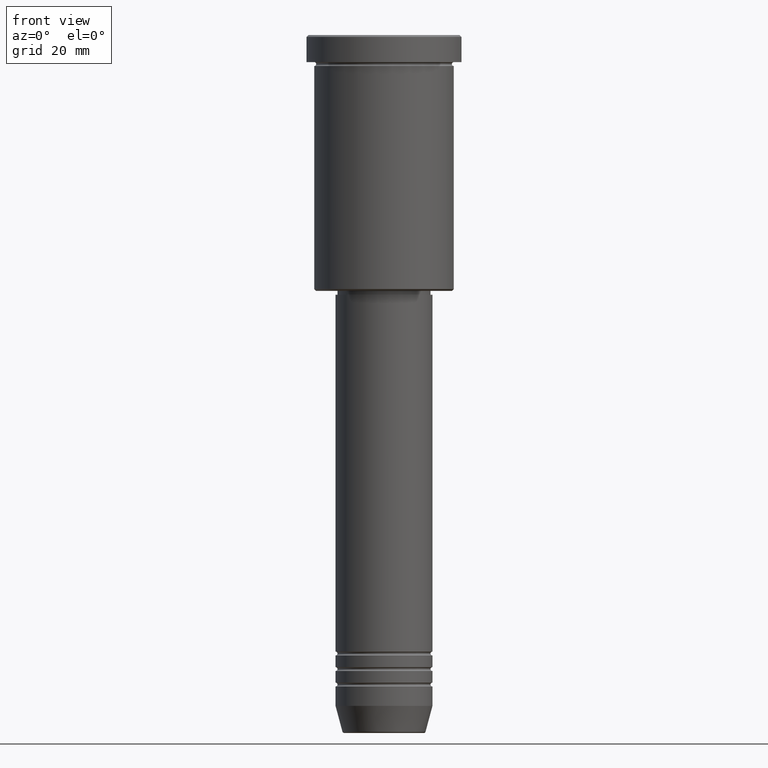
[diagram: clean part render]
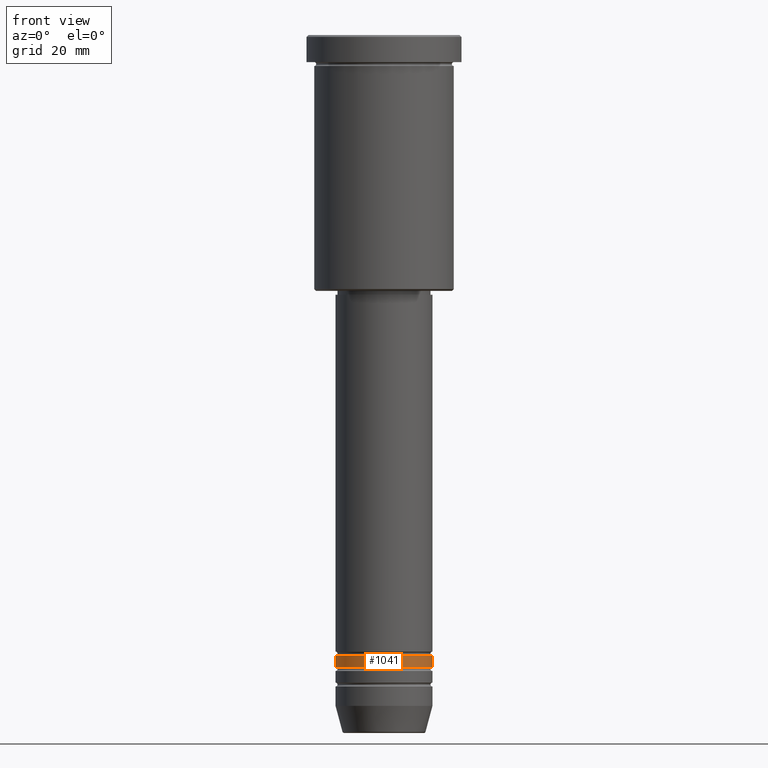
[diagram: same view with one face highlighted and labeled with its STEP entity id]
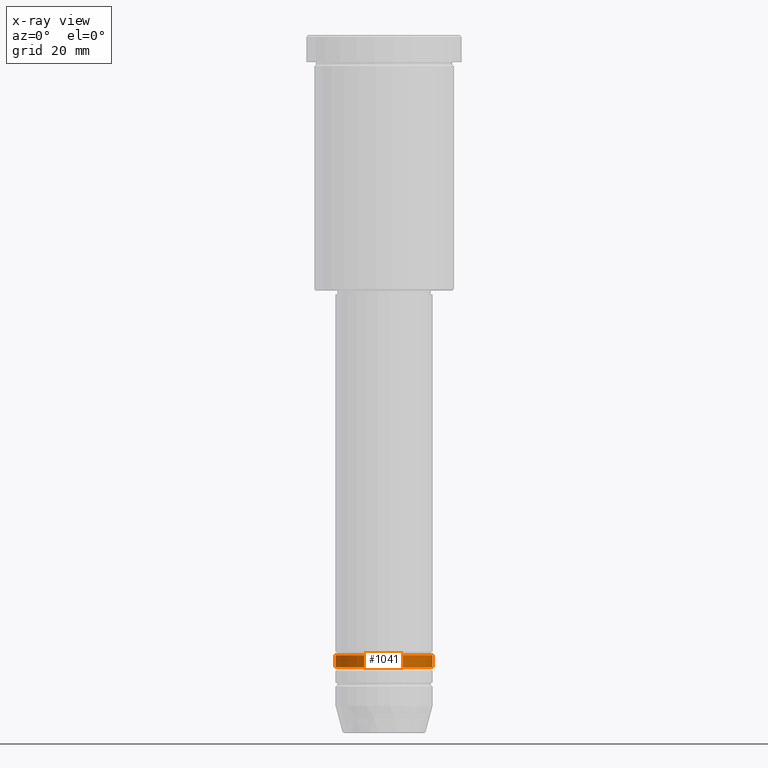
[diagram: x-ray of the same camera — body ghosted, the highlighted face saturated]
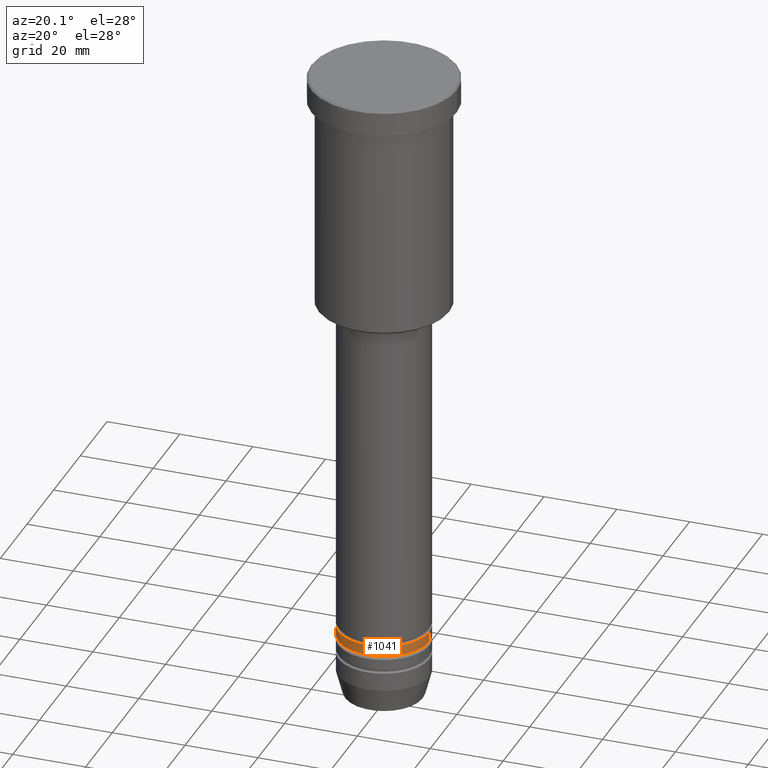
[diagram: same view with one face highlighted and labeled with its STEP entity id]
A machine part, front view. The second image highlights one B-rep face of the part: STEP entity #1041.
The next image is the same camera in x-ray: the body ghosted, the highlighted face saturated — about 0% of this face is hidden behind the body in this view.
A second angle (auxiliary view) of the same face is appended — the face is thin or edge-on in the first view.
In plain terms, the highlighted cylindrical surface (partial cylindrical patch) has radius 12.5 mm, axis along (-0, -0, 1).
Its self-contained STEP definition (entity closure, byte-faithful):
#77 = VECTOR ( 'NONE', #602, 1000.000000000000000 ) ;
#138 = ORIENTED_EDGE ( 'NONE', *, *, #659, .T. ) ;
#149 = CARTESIAN_POINT ( 'NONE',  ( 12.50000000000000178, 0.000000000000000000, 0.000000000000000000 ) ) ;
#180 = VERTEX_POINT ( 'NONE', #869 ) ;
#242 = FACE_OUTER_BOUND ( 'NONE', #1058, .T. ) ;
#251 = CYLINDRICAL_SURFACE ( 'NONE', #422, 12.50000000000000178 ) ;
#253 = DIRECTION ( 'NONE',  ( -0.000000000000000000, -0.000000000000000000, 1.000000000000000000 ) ) ;
#267 = ORIENTED_EDGE ( 'NONE', *, *, #374, .F. ) ;
#329 = CARTESIAN_POINT ( 'NONE',  ( 0.000000000000000000, 0.000000000000000000, 0.000000000000000000 ) ) ;
#374 = EDGE_CURVE ( 'NONE', #487, #605, #554, .T. ) ;
#414 = CARTESIAN_POINT ( 'NONE',  ( 0.000000000000000000, 0.000000000000000000, -163.0000000000000000 ) ) ;
#421 = AXIS2_PLACEMENT_3D ( 'NONE', #414, #498, #872 ) ;
#422 = AXIS2_PLACEMENT_3D ( 'NONE', #329, #611, #686 ) ;
#487 = VERTEX_POINT ( 'NONE', #660 ) ;
#498 = DIRECTION ( 'NONE',  ( -0.000000000000000000, -0.000000000000000000, 1.000000000000000000 ) ) ;
#527 = CARTESIAN_POINT ( 'NONE',  ( 0.000000000000000000, 0.000000000000000000, -160.0000000000000000 ) ) ;
#532 = LINE ( 'NONE', #1071, #705 ) ;
#554 = CIRCLE ( 'NONE', #684, 12.50000000000000000 ) ;
#577 = CIRCLE ( 'NONE', #421, 12.50000000000000355 ) ;
#602 = DIRECTION ( 'NONE',  ( -0.000000000000000000, -0.000000000000000000, 1.000000000000000000 ) ) ;
#603 = CARTESIAN_POINT ( 'NONE',  ( -12.50000000000000533, 1.530808498934192113E-15, -163.0000000000000000 ) ) ;
#605 = VERTEX_POINT ( 'NONE', #848 ) ;
#611 = DIRECTION ( 'NONE',  ( -0.000000000000000000, -0.000000000000000000, 1.000000000000000000 ) ) ;
#659 = EDGE_CURVE ( 'NONE', #662, #180, #577, .T. ) ;
#660 = CARTESIAN_POINT ( 'NONE',  ( -12.50000000000000000, 1.530808498934191719E-15, -160.0000000000000000 ) ) ;
#662 = VERTEX_POINT ( 'NONE', #603 ) ;
#684 = AXIS2_PLACEMENT_3D ( 'NONE', #527, #700, #891 ) ;
#686 = DIRECTION ( 'NONE',  ( 1.000000000000000000, 0.000000000000000000, 0.000000000000000000 ) ) ;
#700 = DIRECTION ( 'NONE',  ( -0.000000000000000000, -0.000000000000000000, 1.000000000000000000 ) ) ;
#705 = VECTOR ( 'NONE', #253, 1000.000000000000000 ) ;
#736 = EDGE_CURVE ( 'NONE', #662, #487, #532, .T. ) ;
#782 = ORIENTED_EDGE ( 'NONE', *, *, #736, .F. ) ;
#848 = CARTESIAN_POINT ( 'NONE',  ( 12.50000000000000000, 0.000000000000000000, -160.0000000000000000 ) ) ;
#869 = CARTESIAN_POINT ( 'NONE',  ( 12.50000000000000355, 0.000000000000000000, -163.0000000000000000 ) ) ;
#872 = DIRECTION ( 'NONE',  ( 1.000000000000000000, 0.000000000000000000, 0.000000000000000000 ) ) ;
#891 = DIRECTION ( 'NONE',  ( 1.000000000000000000, 0.000000000000000000, 0.000000000000000000 ) ) ;
#1014 = EDGE_CURVE ( 'NONE', #180, #605, #1156, .T. ) ;
#1041 = ADVANCED_FACE ( 'NONE', ( #242 ), #251, .T. ) ;
#1058 = EDGE_LOOP ( 'NONE', ( #782, #138, #1070, #267 ) ) ;
#1070 = ORIENTED_EDGE ( 'NONE', *, *, #1014, .T. ) ;
#1071 = CARTESIAN_POINT ( 'NONE',  ( -12.50000000000000178, 1.530808498934191719E-15, 0.000000000000000000 ) ) ;
#1156 = LINE ( 'NONE', #149, #77 ) ;